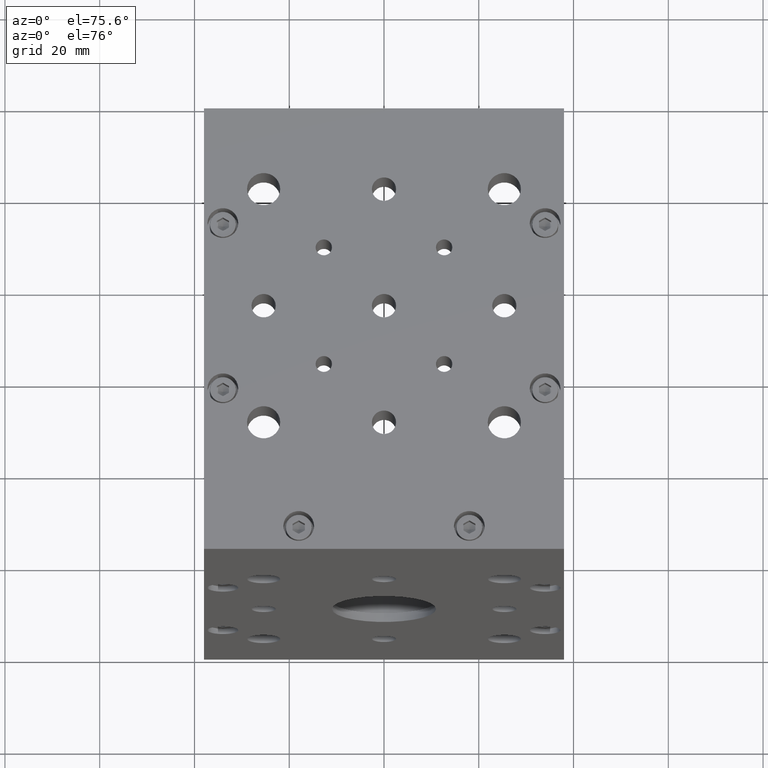
[diagram: clean part render]
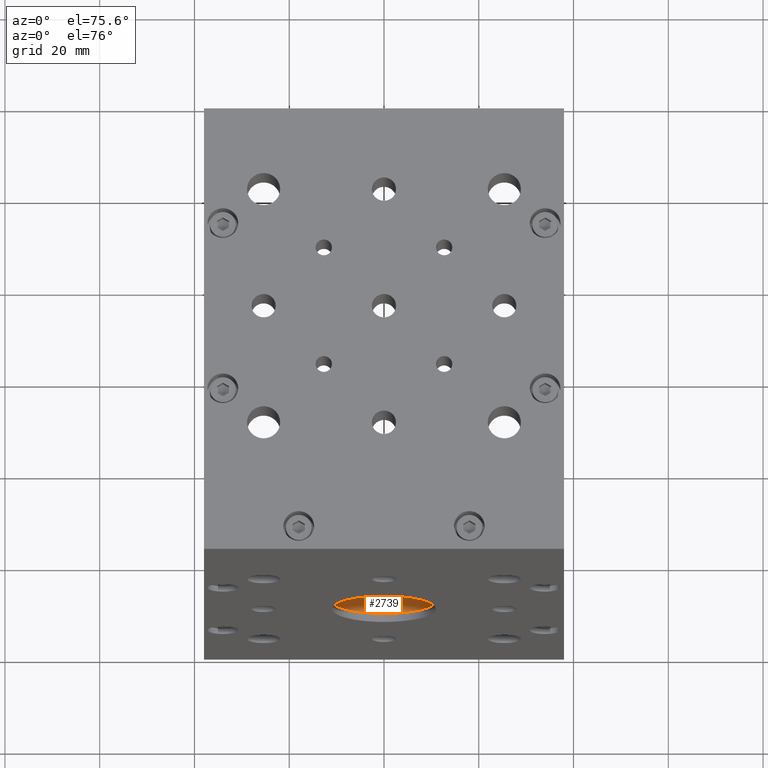
[diagram: same view with one face highlighted and labeled with its STEP entity id]
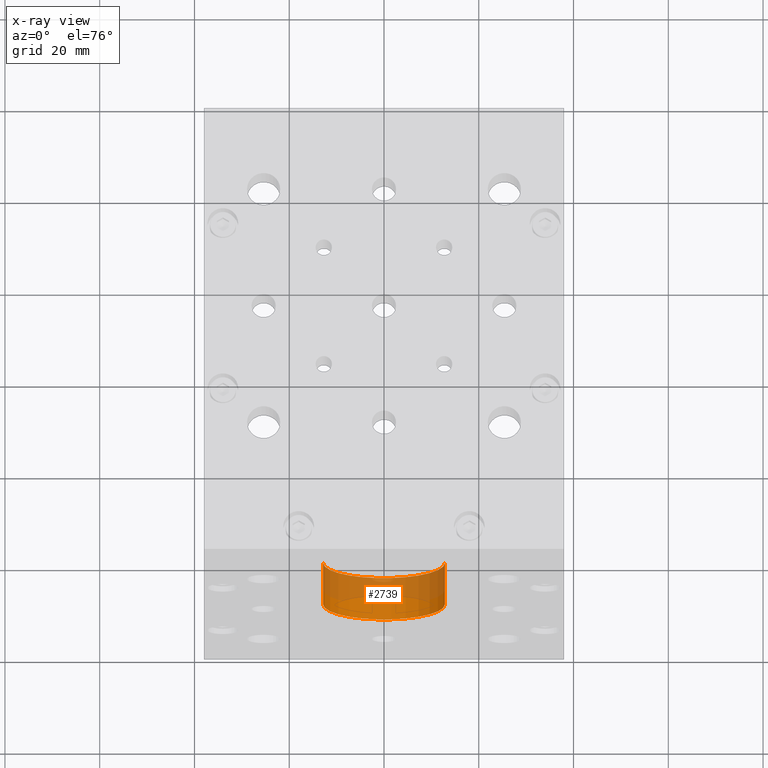
[diagram: x-ray of the same camera — body ghosted, the highlighted face saturated]
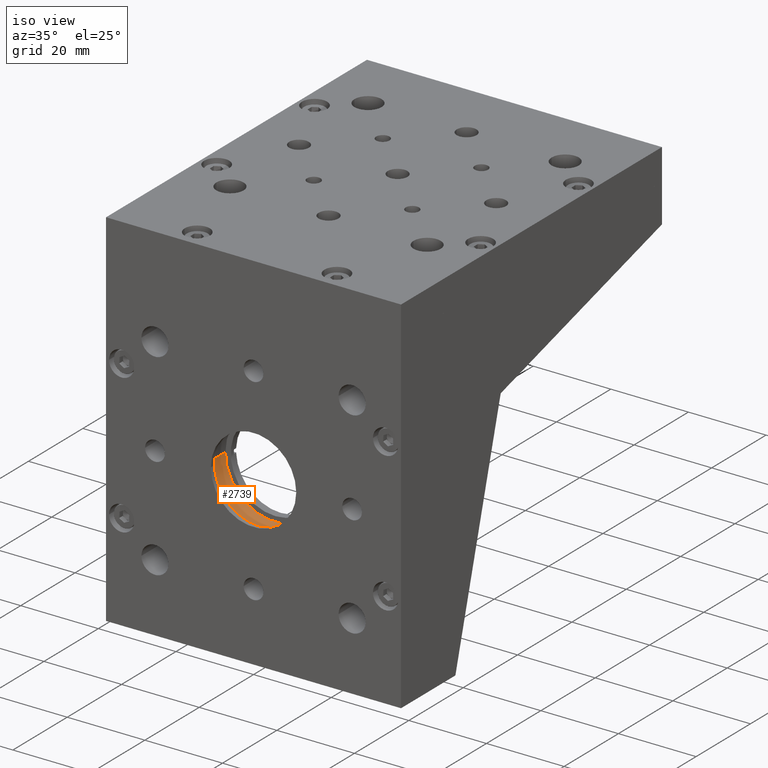
[diagram: same view with one face highlighted and labeled with its STEP entity id]
A machine part, auxiliary view. The second image highlights one B-rep face of the part: STEP entity #2739.
The next image is the same camera in x-ray: the body ghosted, the highlighted face saturated — about 55% of this face is hidden behind the body in this view.
A second angle (iso view) of the same face is appended — the face is thin or edge-on in the first view.
In plain terms, the highlighted cylindrical surface (partial cylindrical patch) has radius 12.85 mm, axis along (0, 1, 0).
Its self-contained STEP definition (entity closure, byte-faithful):
#763 = EDGE_CURVE ( 'NONE', #22957, #20616, #25033, .T. ) ;
#967 = CARTESIAN_POINT ( 'NONE',  ( -12.85000000000000000, 1.000000000000028600, -1.102145718440137000E-015 ) ) ;
#2284 = EDGE_CURVE ( 'NONE', #15546, #20616, #14285, .T. ) ;
#2739 = ADVANCED_FACE ( 'NONE', ( #34838 ), #32267, .F. ) ;
#4390 = CARTESIAN_POINT ( 'NONE',  ( -1.664003471950569700E-030, 1.000000000000028600, -1.102145718440136400E-015 ) ) ;
#5127 = CARTESIAN_POINT ( 'NONE',  ( 0.0000000000000000000, 10.00000000000000200, 0.0000000000000000000 ) ) ;
#5488 = ORIENTED_EDGE ( 'NONE', *, *, #21996, .T. ) ;
#5690 = VERTEX_POINT ( 'NONE', #9285 ) ;
#7302 = ORIENTED_EDGE ( 'NONE', *, *, #763, .T. ) ;
#9285 = CARTESIAN_POINT ( 'NONE',  ( 12.85000000000000000, 1.000000000000028600, 1.022598277684277100E-015 ) ) ;
#10507 = DIRECTION ( 'NONE',  ( 1.848892746611748400E-031, 1.000000000000000000, 1.224606353822377300E-016 ) ) ;
#10528 = CARTESIAN_POINT ( 'NONE',  ( -12.85000000000000000, 1.000000000000028600, -1.102145718440137000E-015 ) ) ;
#10991 = CARTESIAN_POINT ( 'NONE',  ( 12.85000000000000000, 1.000000000000028600, 4.715254184642106100E-016 ) ) ;
#11214 = CARTESIAN_POINT ( 'NONE',  ( -1.664003471950569700E-030, 1.000000000000028600, -1.102145718440136400E-015 ) ) ;
#12500 = DIRECTION ( 'NONE',  ( 1.848892746611748400E-031, 1.000000000000000000, 1.224606353822377300E-016 ) ) ;
#12625 = EDGE_LOOP ( 'NONE', ( #22969, #5488, #7302, #23677 ) ) ;
#13416 = CARTESIAN_POINT ( 'NONE',  ( 12.85000000000000000, 10.00000000000000200, 1.022598277684278700E-015 ) ) ;
#14285 = LINE ( 'NONE', #967, #22825 ) ;
#15113 = DIRECTION ( 'NONE',  ( -1.000000000000000000, 0.0000000000000000000, -4.496334500514947400E-032 ) ) ;
#15546 = VERTEX_POINT ( 'NONE', #10528 ) ;
#18543 = CIRCLE ( 'NONE', #28794, 12.85000000000000000 ) ;
#19918 = AXIS2_PLACEMENT_3D ( 'NONE', #5127, #10507, #35373 ) ;
#20552 = VECTOR ( 'NONE', #26997, 1000.000000000000000 ) ;
#20616 = VERTEX_POINT ( 'NONE', #30308 ) ;
#21996 = EDGE_CURVE ( 'NONE', #5690, #22957, #22266, .T. ) ;
#22266 = LINE ( 'NONE', #10991, #20552 ) ;
#22825 = VECTOR ( 'NONE', #33974, 1000.000000000000000 ) ;
#22957 = VERTEX_POINT ( 'NONE', #13416 ) ;
#22969 = ORIENTED_EDGE ( 'NONE', *, *, #33189, .F. ) ;
#23677 = ORIENTED_EDGE ( 'NONE', *, *, #2284, .F. ) ;
#25033 = CIRCLE ( 'NONE', #19918, 12.85000000000000000 ) ;
#26997 = DIRECTION ( 'NONE',  ( 1.848892746611748400E-031, 1.000000000000000000, 1.224606353822377300E-016 ) ) ;
#28794 = AXIS2_PLACEMENT_3D ( 'NONE', #4390, #12500, #15113 ) ;
#30094 = DIRECTION ( 'NONE',  ( -1.000000000000000000, 0.0000000000000000000, -4.496334500514947400E-032 ) ) ;
#30308 = CARTESIAN_POINT ( 'NONE',  ( -12.85000000000000000, 10.00000000000000200, -6.176612406119025400E-031 ) ) ;
#30575 = DIRECTION ( 'NONE',  ( 1.848892746611748400E-031, 1.000000000000000000, 1.224606353822377300E-016 ) ) ;
#32004 = AXIS2_PLACEMENT_3D ( 'NONE', #11214, #30575, #30094 ) ;
#32267 = CYLINDRICAL_SURFACE ( 'NONE', #32004, 12.85000000000000000 ) ;
#33189 = EDGE_CURVE ( 'NONE', #5690, #15546, #18543, .T. ) ;
#33974 = DIRECTION ( 'NONE',  ( 1.848892746611748400E-031, 1.000000000000000000, 1.224606353822377300E-016 ) ) ;
#34838 = FACE_OUTER_BOUND ( 'NONE', #12625, .T. ) ;
#35373 = DIRECTION ( 'NONE',  ( -1.000000000000000000, 0.0000000000000000000, -4.806702261571226000E-032 ) ) ;